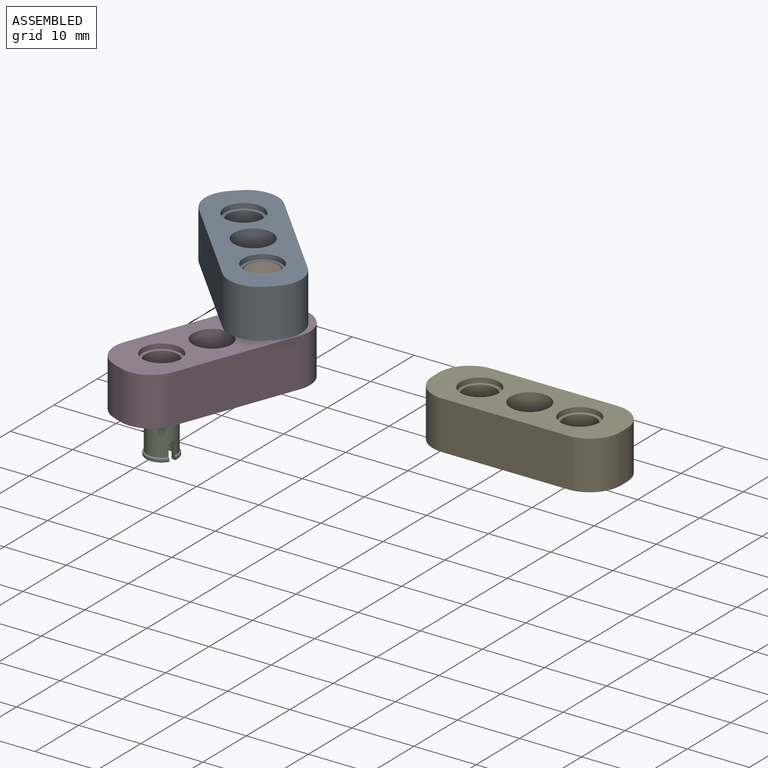
[diagram: assembled view]
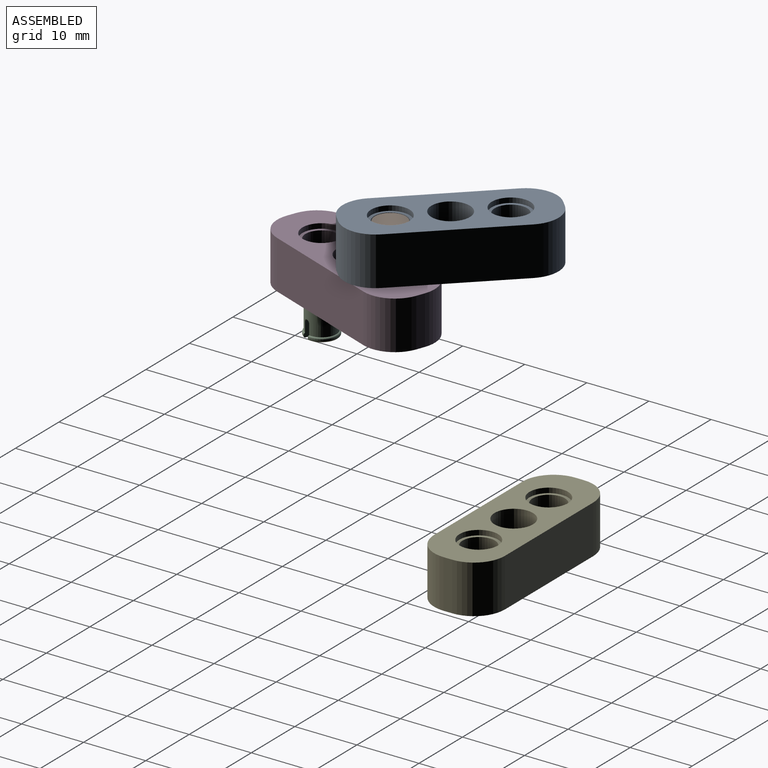
[diagram: assembled view, second angle]
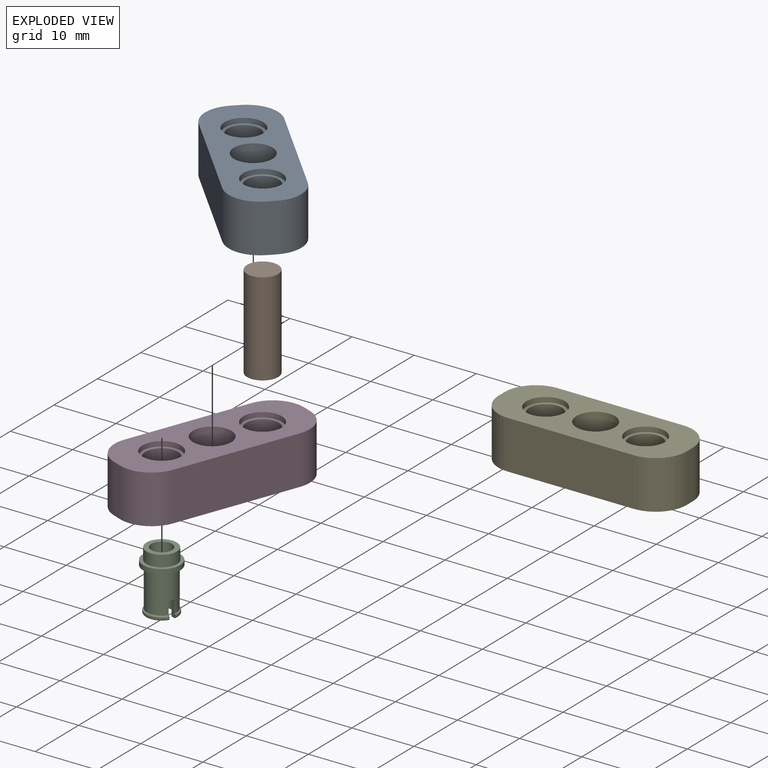
[diagram: exploded view]
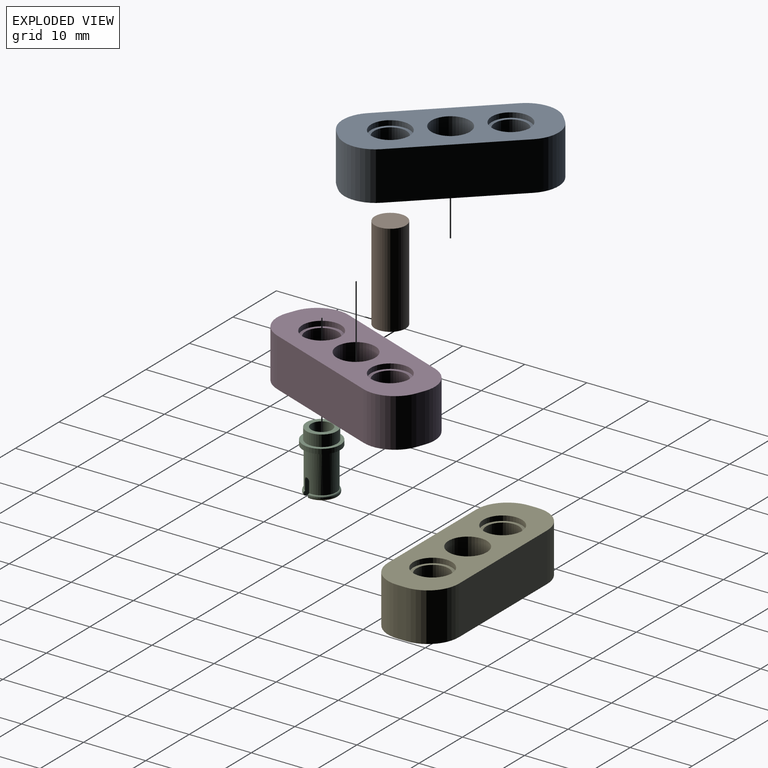
[diagram: exploded view, second angle]
ASSEMBLY  parts=5 mates=3
PART A: 21 faces, bbox 30.3x11.4x7.8 mm
  f0: cylinder r=3.1mm len=6.2mm, axis (0,0,-1), area 15.6mm2, adj f14,f20
  f1: cylinder r=3.1mm len=6.2mm, axis (0,0,-1), area 15.6mm2, adj f14,f17
  f2: cylinder r=5mm len=7.8mm, axis (0,0,-1), area 61.3mm2, adj f3,f12,f13,f14
  f3: plane 20.3x7.8mm, normal (0,-1,0), area 158.3mm2, adj f2,f4,f13,f14
  f4: cylinder r=5mm len=7.8mm, axis (0,0,-1), area 61.3mm2, adj f3,f5,f13,f14
  f5: plane 7.8x1.4mm, normal (1,0,0), area 10.9mm2, adj f4,f6,f13,f14
  f6: cylinder r=5mm len=7.8mm, axis (0,0,-1), area 61.3mm2, adj f5,f7,f13,f14
  f7: plane 20.3x7.8mm, normal (0,1,0), area 158.3mm2, adj f6,f8,f13,f14
  f8: cylinder r=5mm len=7.8mm, axis (0,0,-1), area 61.3mm2, adj f7,f12,f13,f14
  f9: cylinder r=3.1mm len=6.2mm, axis (0,0,-1), area 15.6mm2, adj f13,f16
  f10: cylinder r=3.1mm len=6.2mm, axis (0,0,-1), area 15.6mm2, adj f13,f19
  f11: cylinder r=3.1mm len=7.8mm, axis (0,0,-1), area 151.9mm2, adj f13,f14
  f12: plane 7.8x1.4mm, normal (-1,0,0), area 10.9mm2, adj f2,f8,f13,f14
  f13: plane 30.3x11.4mm, normal (0,0,1), area 233.4mm2, adj f2,f3,f4,f5,f6,f7,f8,f9
  f14: plane 30.3x11.4mm, normal (0,0,-1), area 233.4mm2, adj f0,f1,f2,f3,f4,f5,f6,f7
  f15: cylinder r=2.6mm len=6.2mm, axis (0,0,-1), area 101.3mm2, adj f16,f17
  f16: plane 6.2x6.2mm, normal (0,0,1), area 9mm2, adj f9,f15
  f17: plane 6.2x6.2mm, normal (0,0,-1), area 9mm2, adj f1,f15
  f18: cylinder r=2.6mm len=6.2mm, axis (0,0,-1), area 101.3mm2, adj f19,f20
  f19: plane 6.2x6.2mm, normal (0,0,1), area 9mm2, adj f10,f18
  f20: plane 6.2x6.2mm, normal (0,0,-1), area 9mm2, adj f0,f18
PART B: 3 faces, bbox 5x5x15 mm
  f0: cylinder r=2.5mm len=15mm, axis (0,0,-1), area 235.6mm2, adj f1,f2
  f1: plane 5x5mm, normal (0,0,1), area 19.6mm2, adj f0
  f2: plane 5x5mm, normal (0,0,-1), area 19.6mm2, adj f0
PART C: 25 faces, bbox 6x6x9.6 mm
  f0: cylinder r=2.38mm len=6.3mm, axis (0,0,-1), area 90.1mm2, adj f3,f9,f13,f15,f16,f17,f18,f19
  f1: cylinder r=2.58mm len=5.06mm, axis (0,0,-1), area 1.5mm2, adj f3,f14,f17,f18
  f2: plane 4.55x1.85mm, normal (0,0,1), area 3.5mm2, adj f5,f14,f17,f18
  f3: torus R=2.32mm, axis (0,0,-1), area 2.4mm2, adj f0,f1,f17,f18
  f4: torus R=2.32mm, axis (0,0,1), area 2.7mm2, adj f11,f12,f16,f19
  f5: cylinder r=1.68mm len=9.6mm, axis (0,0,1), area 95.8mm2, adj f2,f7,f12,f15,f16,f17,f18,f19
  f6: cylinder r=2.45mm len=4.9mm, axis (0,0,-1), area 28.2mm2, adj f7,f10
  f7: plane 4.9x4.9mm, normal (0,0,-1), area 10mm2, adj f5,f6
  f8: cylinder r=3mm len=6mm, axis (0,0,-1), area 14.5mm2, adj f9,f10
  f9: plane 6x6mm, normal (0,0,1), area 10.6mm2, adj f0,f8
  f10: plane 6x6mm, normal (0,0,-1), area 9.4mm2, adj f6,f8
  f11: cylinder r=2.58mm len=5.06mm, axis (0,0,-1), area 1.5mm2, adj f4,f13,f16,f19
  f12: plane 4.55x1.85mm, normal (0,0,1), area 3.5mm2, adj f4,f5,f16,f19
  f13: torus R=2.32mm, axis (0,0,-1), area 2.4mm2, adj f0,f11,f16,f19
  f14: torus R=2.32mm, axis (0,0,1), area 2.7mm2, adj f1,f2,f17,f18
  f15: plane 0.7x0.15mm, normal (0,0,1), area 0.1mm2, adj f0,f5,f23,f24
  f16: plane 2.42x0.94mm, normal (1,0,0), area 1.8mm2, adj f0,f4,f5,f11,f12,f13,f23
  f17: plane 2.42x0.94mm, normal (-1,0,0), area 1.8mm2, adj f0,f1,f2,f3,f5,f14,f24
  f18: plane 2.42x0.94mm, normal (-1,0,0), area 1.8mm2, adj f0,f1,f2,f3,f5,f14,f22
  f19: plane 2.42x0.94mm, normal (1,0,0), area 1.8mm2, adj f0,f4,f5,f11,f12,f13,f21
  f20: plane 0.7x0.15mm, normal (0,0,1), area 0.1mm2, adj f0,f5,f21,f22
  f21: cylinder r=0.4mm len=0.77mm, axis (0,-1,0), area 0.4mm2, adj f0,f5,f19,f20
  f22: cylinder r=0.4mm len=0.77mm, axis (0,1,0), area 0.4mm2, adj f0,f5,f18,f20
  f23: cylinder r=0.4mm len=0.77mm, axis (0,-1,0), area 0.4mm2, adj f0,f5,f15,f16
  f24: cylinder r=0.4mm len=0.77mm, axis (0,1,0), area 0.4mm2, adj f0,f5,f15,f17
PART D: same geometry as A
PART E: same geometry as A
PLACE A rot(axis=(0,0,-1),46.2deg) t=(-19.36,-6.48,31.15)mm fixed
PLACE B rot(axis=(0,0,1),69.2deg) t=(-13.79,-12.27,26.75)mm
PLACE C rot(axis=(0.82,0.57,0),180deg) t=(-19.5,-27.32,21.08)mm
PLACE D rot(axis=(0,0,1),69.2deg) t=(-16.63,-19.79,22.35)mm
PLACE E t=(5.76,21.27,3.43)mm
MATE revolute A.f0 <-> B.f0  axis (0,0,1) through (-13.79,-12.27,34.25)mm
MATE fastened B.f0 <-> D.f0  axis (0,0,-1) through (-13.79,-12.27,19.25)mm
MATE fastened C.f0 <-> D.f1  axis (0,0,1) through (-19.5,-27.32,19.25)mm
